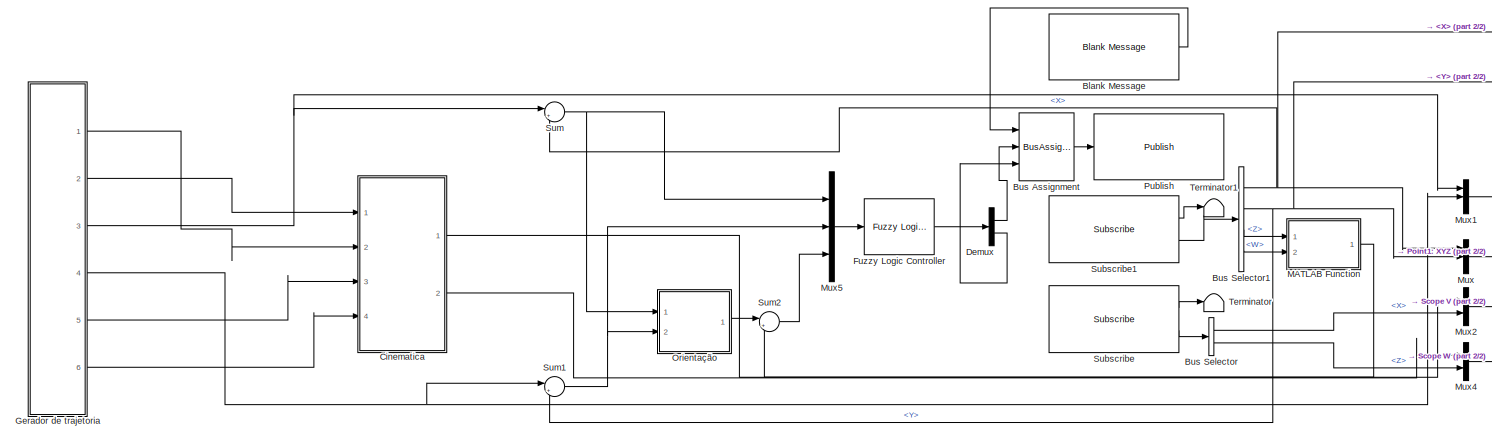
[diagram: root canvas - part 1/2, most of the canvas]
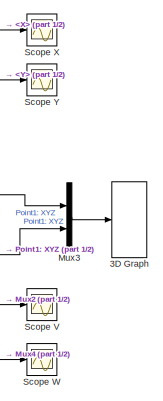
[diagram: root canvas - part 2/2, right side, full height]
MODEL slx_b3c649f6a18d
KIND model
CONFIG AbsTol = auto
CONFIG EnableMultiTasking = off
CONFIG FixedStep = 0.04
CONFIG MaxStep = auto
CONFIG MinStep = auto
CONFIG RelTol = 1e-3
CONFIG SampleTimeConstraint = Unconstrained
CONFIG Solver = ode4
CONFIG SolverName = ode4
CONFIG StartTime = 0.0
CONFIG StopTime = 148
BLOCK [S-Function] 3D Graph
  CopyFcn = if exist('sfun3d','file'), sfun3d([],[],[],'CopyBlock'); end
  DeleteFcn = if exist('sfun3d','file'), sfun3d([],[],[],'DeleteBlock'); end
  EnableBusSupport = off
  FunctionName = sfun3d
  LoadFcn = if exist('sfun3d','file'), sfun3d([],[],[],'LoadBlock'); end
  NameChangeFcn = if exist('sfun3d','file'), sfun3d([],[],[],'NameChange'); end
  Parameters = ax,T,np,cp,gd,ls,mk,mx,hd,tb
  Ports = [1]
  SFcnIsStateOwnerBlock = off
  SFunctionDeploymentMode = off
BLOCK [Reference] Blank Message  REF=robotlib/Blank Message
  Ports = [0, 1]
  SourceBlock = robotlib/Blank Message
  SourceProductBaseCode = RO
  SourceProductName = Robotics System Toolbox
  SourceType = ROS Blank Message
BLOCK [BusAssignment] Bus Assignment
  AssignedSignals = Linear.X,Angular.Z
  Ports = [3, 1]
BLOCK [BusSelector] Bus Selector
  OutputAsBus = off
  OutputSignals = Linear.X,Angular.Z
  Ports = [1, 2]
BLOCK [BusSelector] Bus Selector1
  OutputAsBus = off
  OutputSignals = Pose.Pose.Position.X,Pose.Pose.Position.Y,Pose.Pose.Orientation.Z,Pose.Pose.Orientation.W
  Ports = [1, 4]
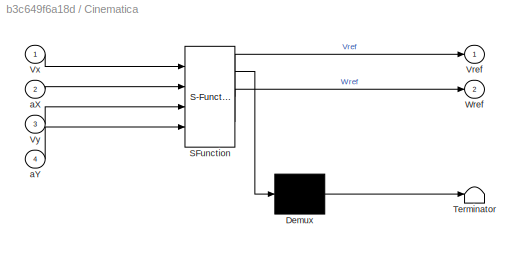
BLOCK [SubSystem] Cinematica
  ErrorFcn = Stateflow.Translate.translate
  PermitHierarchicalResolution = ExplicitOnly
  Ports = [4, 2]
  RequestExecContextInheritance = off
  SFBlockType = MATLAB Function
  TreatAsAtomicUnit = on
BLOCK [Demux] Cinematica/ Demux 
  Outputs = 1
  Ports = [1, 1]
BLOCK [S-Function] Cinematica/ SFunction 
  EnableBusSupport = on
  FunctionName = sf_sfun
  PortCounts = [4 3]
  Ports = [4, 3]
  SFcnIsStateOwnerBlock = off
  SFunctionDeploymentMode = off
  Tag = Stateflow S-Function pratica5 5
BLOCK [Terminator] Cinematica/ Terminator 
BLOCK [Outport] Cinematica/Vref
  IconDisplay = Port number
BLOCK [Inport] Cinematica/Vx
  IconDisplay = Port number
BLOCK [Inport] Cinematica/Vy
  IconDisplay = Port number
  Port = 3
BLOCK [Outport] Cinematica/Wref
  IconDisplay = Port number
  Port = 2
BLOCK [Inport] Cinematica/aX
  IconDisplay = Port number
  Port = 2
BLOCK [Inport] Cinematica/aY
  IconDisplay = Port number
  Port = 4
BLOCK [Demux] Demux
  DisplayOption = bar
  Outputs = 2
  Ports = [1, 2]
BLOCK [Reference] Fuzzy Logic Controller  REF=fuzblock/Fuzzy Logic   (lib defined in mdl_858b3b3e7478)
Controller
  Ports = [1, 1]
  SourceBlock = fuzblock/Fuzzy Logic \nController
  SourceProductBaseCode = FL
  SourceProductName = Fuzzy Logic Toolbox
  SourceType = Fuzzy Inference System
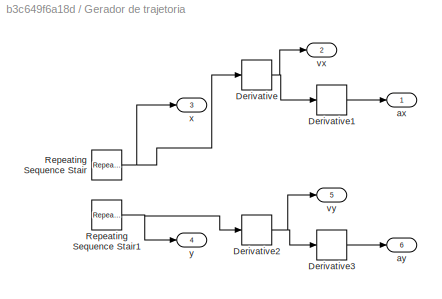
BLOCK [SubSystem] Gerador de trajetoria 
  Ports = [0, 6]
  RequestExecContextInheritance = off
BLOCK [Derivative] Gerador de trajetoria /Derivative
BLOCK [Derivative] Gerador de trajetoria /Derivative1
BLOCK [Derivative] Gerador de trajetoria /Derivative2
BLOCK [Derivative] Gerador de trajetoria /Derivative3
BLOCK [Reference] Gerador de trajetoria /Repeating Sequence Stair  REF=simulink/Sources/Repeating
Sequence
Stair
  Ports = [0, 1]
  SourceBlock = simulink/Sources/Repeating\nSequence\nStair
  SourceProductBaseCode = SL
  SourceProductName = Simulink
  SourceType = Repeating Sequence Stair
BLOCK [Reference] Gerador de trajetoria /Repeating Sequence Stair1  REF=simulink/Sources/Repeating
Sequence
Stair
  Ports = [0, 1]
  SourceBlock = simulink/Sources/Repeating\nSequence\nStair
  SourceProductBaseCode = SL
  SourceProductName = Simulink
  SourceType = Repeating Sequence Stair
BLOCK [Outport] Gerador de trajetoria /ax
  IconDisplay = Port number
BLOCK [Outport] Gerador de trajetoria /ay
  IconDisplay = Port number
  Port = 6
BLOCK [Outport] Gerador de trajetoria /vx
  IconDisplay = Port number
  Port = 2
BLOCK [Outport] Gerador de trajetoria /vy
  IconDisplay = Port number
  Port = 5
BLOCK [Outport] Gerador de trajetoria /x
  IconDisplay = Port number
  Port = 3
BLOCK [Outport] Gerador de trajetoria /y
  IconDisplay = Port number
  Port = 4
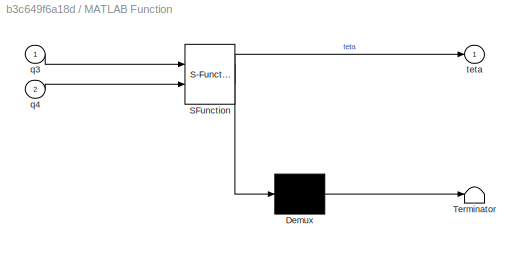
BLOCK [SubSystem] MATLAB Function
  ErrorFcn = Stateflow.Translate.translate
  PermitHierarchicalResolution = ExplicitOnly
  Ports = [2, 1]
  RequestExecContextInheritance = off
  SFBlockType = MATLAB Function
  TreatAsAtomicUnit = on
BLOCK [Demux] MATLAB Function/ Demux 
  Outputs = 1
  Ports = [1, 1]
BLOCK [S-Function] MATLAB Function/ SFunction 
  EnableBusSupport = on
  FunctionName = sf_sfun
  PortCounts = [2 2]
  Ports = [2, 2]
  SFcnIsStateOwnerBlock = off
  SFunctionDeploymentMode = off
  Tag = Stateflow S-Function pratica5 2
BLOCK [Terminator] MATLAB Function/ Terminator 
BLOCK [Inport] MATLAB Function/q3
  IconDisplay = Port number
BLOCK [Inport] MATLAB Function/q4
  IconDisplay = Port number
  Port = 2
BLOCK [Outport] MATLAB Function/teta
  IconDisplay = Port number
BLOCK [Mux] Mux
  DisplayOption = bar
  Inputs = 3
  Ports = [3, 1]
BLOCK [Mux] Mux1
  DisplayOption = bar
  Inputs = 3
  Ports = [3, 1]
BLOCK [Mux] Mux2
  DisplayOption = bar
  Inputs = 2
  Ports = [2, 1]
BLOCK [Mux] Mux3
  DisplayOption = bar
  Inputs = 2
  Ports = [2, 1]
BLOCK [Mux] Mux4
  DisplayOption = bar
  Inputs = 2
  Ports = [2, 1]
BLOCK [Mux] Mux5
  DisplayOption = bar
  Inputs = 3
  Ports = [3, 1]
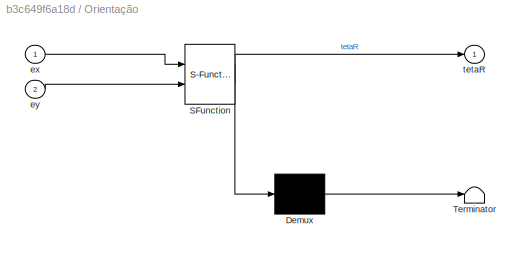
BLOCK [SubSystem] Orientação
  ErrorFcn = Stateflow.Translate.translate
  PermitHierarchicalResolution = ExplicitOnly
  Ports = [2, 1]
  RequestExecContextInheritance = off
  SFBlockType = MATLAB Function
  TreatAsAtomicUnit = on
BLOCK [Demux] Orientação/ Demux 
  Outputs = 1
  Ports = [1, 1]
BLOCK [S-Function] Orientação/ SFunction 
  EnableBusSupport = on
  FunctionName = sf_sfun
  PortCounts = [2 2]
  Ports = [2, 2]
  SFcnIsStateOwnerBlock = off
  SFunctionDeploymentMode = off
  Tag = Stateflow S-Function pratica5 4
BLOCK [Terminator] Orientação/ Terminator 
BLOCK [Inport] Orientação/ex
  IconDisplay = Port number
BLOCK [Inport] Orientação/ey
  IconDisplay = Port number
  Port = 2
BLOCK [Outport] Orientação/tetaR
  IconDisplay = Port number
BLOCK [Reference] Publish  REF=robotlib/Publish
  Ports = [1]
  SourceBlock = robotlib/Publish
  SourceProductBaseCode = RO
  SourceProductName = Robotics System Toolbox
  SourceType = ROS Publish
BLOCK [Scope] Scope V
  Floating = off
  NumInputPorts = 1
  Ports = [1]
  ScopeSpecificationString = Simulink.scopes.TimeScopeBlockCfg('CurrentConfiguration', extmgr.ConfigurationSet(extmgr.Configuration('Core','General UI',true),extmgr.Configuration('Core','Source UI',true),extmgr.Configuration('Sources','WiredSimulink',true,'DataLoggingVariableName','ScopeData2'),extmgr.Configuration('Visuals','Time Domain',true,'SerializedDisplays',{struct('MinYLimReal','-1.40202','MaxYLimReal','12.61814','YLa...<+1384ch>
BLOCK [Scope] Scope W
  Floating = off
  NumInputPorts = 1
  Ports = [1]
  ScopeSpecificationString = Simulink.scopes.TimeScopeBlockCfg('CurrentConfiguration', extmgr.ConfigurationSet(extmgr.Configuration('Core','General UI',true),extmgr.Configuration('Core','Source UI',true),extmgr.Configuration('Sources','WiredSimulink',true,'DataLoggingVariableName','ScopeData3'),extmgr.Configuration('Visuals','Time Domain',true),extmgr.Configuration('Tools','Plot Navigation',true),extmgr.Configuration('Tools',...<+40ch>
BLOCK [Scope] Scope X
  Floating = off
  NumInputPorts = 1
  Ports = [1]
  ScopeSpecificationString = Simulink.scopes.TimeScopeBlockCfg('CurrentConfiguration', extmgr.ConfigurationSet(extmgr.Configuration('Core','General UI',true),extmgr.Configuration('Core','Source UI',true),extmgr.Configuration('Sources','WiredSimulink',true),extmgr.Configuration('Visuals','Time Domain',true),extmgr.Configuration('Tools','Plot Navigation',true),extmgr.Configuration('Tools','Measurements',true)),'Version','2019a'...<+1ch>
BLOCK [Scope] Scope Y
  Floating = off
  NumInputPorts = 1
  Ports = [1]
  ScopeSpecificationString = Simulink.scopes.TimeScopeBlockCfg('CurrentConfiguration', extmgr.ConfigurationSet(extmgr.Configuration('Core','General UI',true),extmgr.Configuration('Core','Source UI',true),extmgr.Configuration('Sources','WiredSimulink',true,'DataLoggingVariableName','ScopeData1'),extmgr.Configuration('Visuals','Time Domain',true),extmgr.Configuration('Tools','Plot Navigation',true),extmgr.Configuration('Tools',...<+40ch>
BLOCK [Reference] Subscribe  REF=robotlib/Subscribe
  Ports = [0, 2]
  SourceBlock = robotlib/Subscribe
  SourceProductBaseCode = RO
  SourceProductName = Robotics System Toolbox
  SourceType = ROS Subscribe
BLOCK [Reference] Subscribe1  REF=robotlib/Subscribe
  Ports = [0, 2]
  SourceBlock = robotlib/Subscribe
  SourceProductBaseCode = RO
  SourceProductName = Robotics System Toolbox
  SourceType = ROS Subscribe
BLOCK [Sum] Sum
  IconShape = round
  InputSameDT = off
  Inputs = |+-
  OutDataTypeStr = Inherit: Inherit via internal rule
  Ports = [2, 1]
  SaturateOnIntegerOverflow = off
BLOCK [Sum] Sum1
  IconShape = round
  InputSameDT = off
  Inputs = |+-
  OutDataTypeStr = Inherit: Inherit via internal rule
  Ports = [2, 1]
  SaturateOnIntegerOverflow = off
BLOCK [Sum] Sum2
  IconShape = round
  InputSameDT = off
  Inputs = |+-
  OutDataTypeStr = Inherit: Inherit via internal rule
  Ports = [2, 1]
  SaturateOnIntegerOverflow = off
BLOCK [Terminator] Terminator
BLOCK [Terminator] Terminator1
LINE Blank Message:1 -> Bus Assignment:1
LINE Bus Assignment:1 -> Publish:1
NET Bus Selector1:1 -> Mux:1, Scope X:1, Sum:2
NET Bus Selector1:2 -> Mux:2, Scope Y:1, Sum1:2
LINE Bus Selector1:3 -> MATLAB Function:1
LINE Bus Selector1:4 -> MATLAB Function:2
LINE Bus Selector:1 -> Mux2:2
LINE Bus Selector:2 -> Mux4:2
LINE Cinematica:1 -> Mux2:1
LINE Cinematica:2 -> Mux4:1
LINE Demux:1 -> Bus Assignment:2
LINE Demux:2 -> Bus Assignment:3
LINE Fuzzy Logic Controller:1 -> Demux:1
LINE Gerador de trajetoria /Derivative1:1 -> Gerador de trajetoria /ax:1
NET Gerador de trajetoria /Derivative2:1 -> Gerador de trajetoria /Derivative3:1, Gerador de trajetoria /vy:1
LINE Gerador de trajetoria /Derivative3:1 -> Gerador de trajetoria /ay:1
NET Gerador de trajetoria /Derivative:1 -> Gerador de trajetoria /Derivative1:1, Gerador de trajetoria /vx:1
NET Gerador de trajetoria /Repeating Sequence Stair1:1 -> Gerador de trajetoria /Derivative2:1, Gerador de trajetoria /y:1
NET Gerador de trajetoria /Repeating Sequence Stair:1 -> Gerador de trajetoria /Derivative:1, Gerador de trajetoria /x:1
LINE Gerador de trajetoria :1 -> Cinematica:2
LINE Gerador de trajetoria :2 -> Cinematica:1
NET Gerador de trajetoria :3 -> Mux1:1, Sum:1
NET Gerador de trajetoria :4 -> Mux1:2, Sum1:1
LINE Gerador de trajetoria :5 -> Cinematica:3
LINE Gerador de trajetoria :6 -> Cinematica:4
LINE MATLAB Function:1 -> Sum2:2
LINE Mux1:1 -> Mux3:1
LINE Mux2:1 -> Scope V:1
LINE Mux3:1 -> 3D Graph:1
LINE Mux4:1 -> Scope W:1
LINE Mux5:1 -> Fuzzy Logic Controller:1
LINE Mux:1 -> Mux3:2
LINE Orientação:1 -> Sum2:1
LINE Subscribe1:1 -> Terminator1:1
LINE Subscribe1:2 -> Bus Selector1:1
LINE Subscribe:1 -> Terminator:1
LINE Subscribe:2 -> Bus Selector:1
NET Sum1:1 -> Mux5:2, Orientação:2
LINE Sum2:1 -> Mux5:3
NET Sum:1 -> Mux5:1, Orientação:1
note: NET lines group one-source signal fan-out (src -> all destinations, sorted); 1:1 wires keep LINE
CHART MATLAB Function states=1 transitions=1
  STATE_LABEL 'eML_blk_kernel()'
  STATE_LABEL 'SCRIPT:\nfunction teta = fcn2(q3,q4)\nteta=2*atan2(q3,q4);\n'
CHART Orientação states=1 transitions=1
  STATE_LABEL 'eML_blk_kernel()'
  STATE_LABEL 'SCRIPT:\nfunction tetaR  = fcn(ex, ey)\n\ntetaR = atan2(ey,ex);\n\nend\n'
CHART Cinematica states=1 transitions=1
  STATE_LABEL 'eML_blk_kernel()'
  STATE_LABEL 'SCRIPT:\nfunction [Vref, Wref] = fcn(Vx, aX, Vy, aY)\n\nVref = sqrt(Vx^2 + Vy^2);\nWref = (Vx*aY - Vy*aX)/(Vx^2 + Vy^2);\n\nend\n'
